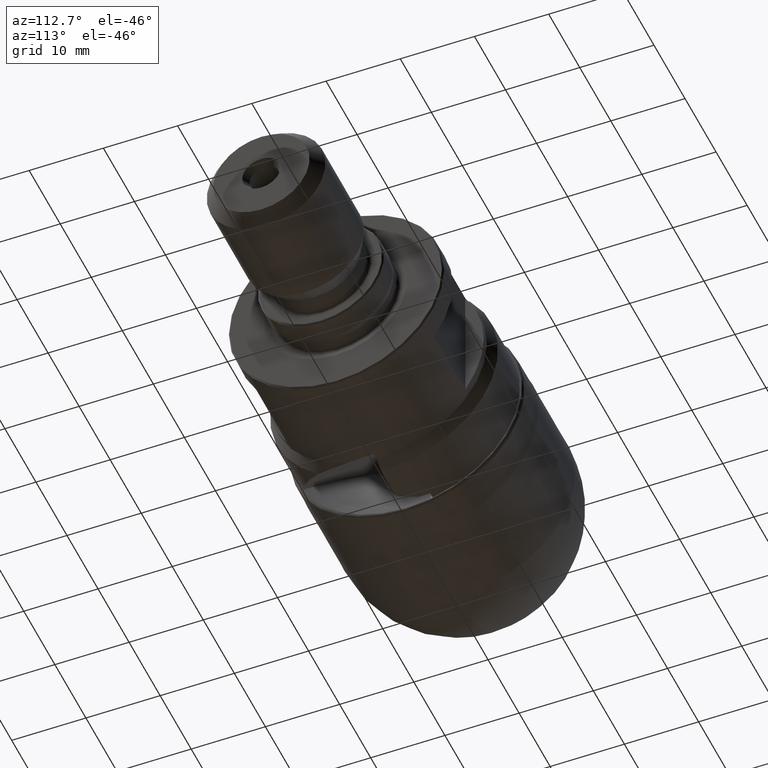
[diagram: clean part render]
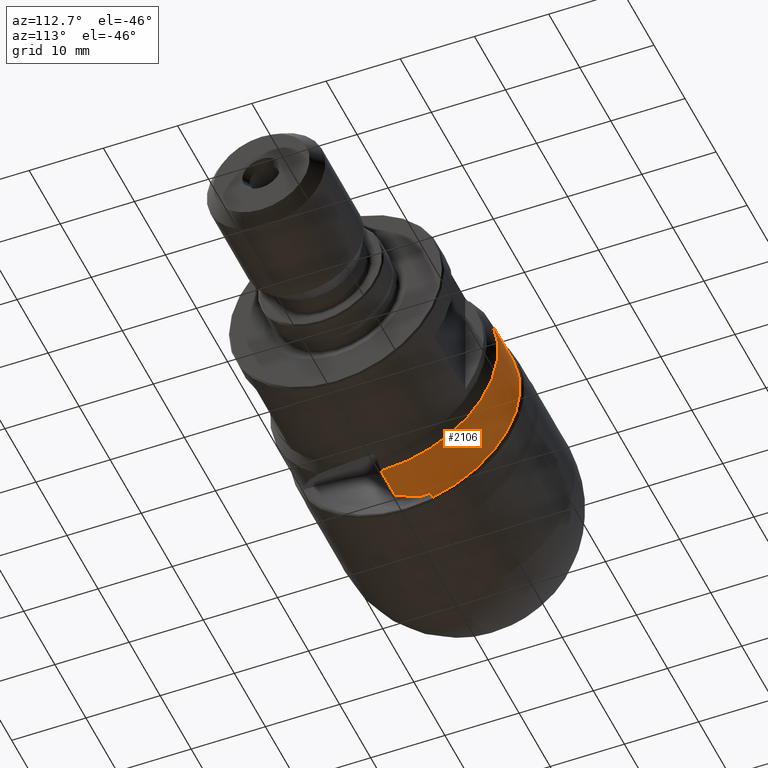
[diagram: same view with one face highlighted and labeled with its STEP entity id]
A machine part, auxiliary view. The second image highlights one B-rep face of the part: STEP entity #2106.
In plain terms, the highlighted cylindrical surface (partial cylindrical patch) has radius 15.362 mm, axis along (-1, 0, 0).
Its self-contained STEP definition (entity closure, byte-faithful):
#281 = CARTESIAN_POINT ( 'NONE',  ( 33.52251955386206816, 1.881305994767226599E-15, -15.36202924857244767 ) ) ;
#309 = DIRECTION ( 'NONE',  ( -1.000000000000000000, 0.0000000000000000000, 0.0000000000000000000 ) ) ;
#401 = CARTESIAN_POINT ( 'NONE',  ( 31.92414880946625644, 9.206737823980432722, 12.61522035699139188 ) ) ;
#452 = EDGE_CURVE ( 'NONE', #2732, #812, #1755, .T. ) ;
#516 = CARTESIAN_POINT ( 'NONE',  ( 28.98327717877516818, -0.4276279099999997224, -15.35607622423724017 ) ) ;
#521 = EDGE_CURVE ( 'NONE', #2577, #1482, #3431, .T. ) ;
#686 = CARTESIAN_POINT ( 'NONE',  ( 33.52251955386206816, 6.672479506331188581, 13.83726706657011007 ) ) ;
#714 = ORIENTED_EDGE ( 'NONE', *, *, #3782, .T. ) ;
#812 = VERTEX_POINT ( 'NONE', #1373 ) ;
#858 = CARTESIAN_POINT ( 'NONE',  ( 27.22390845468305898, 3.599414229999999826, -14.93439519481350786 ) ) ;
#989 = DIRECTION ( 'NONE',  ( -1.000000000000000000, 0.0000000000000000000, 0.0000000000000000000 ) ) ;
#990 = ORIENTED_EDGE ( 'NONE', *, *, #452, .F. ) ;
#1105 = CARTESIAN_POINT ( 'NONE',  ( 26.41533352457568284, 12.85980528125481648, 8.403413042461140847 ) ) ;
#1154 = AXIS2_PLACEMENT_3D ( 'NONE', #3698, #309, #4480 ) ;
#1373 = CARTESIAN_POINT ( 'NONE',  ( 26.41533352457566508, 3.599414229999999826, -14.93439519481350786 ) ) ;
#1377 = CIRCLE ( 'NONE', #4152, 15.36202924857244767 ) ;
#1482 = VERTEX_POINT ( 'NONE', #2316 ) ;
#1583 = CARTESIAN_POINT ( 'NONE',  ( 27.22390845468305898, 3.599414229999999826, -14.93439519481350786 ) ) ;
#1612 = DIRECTION ( 'NONE',  ( -1.000000000000000000, 0.0000000000000000000, 0.0000000000000000000 ) ) ;
#1635 = CARTESIAN_POINT ( 'NONE',  ( 27.37863530442848514, 2.603907443426974666, -15.14829911210628310 ) ) ;
#1640 = CIRCLE ( 'NONE', #1154, 15.36202924857244767 ) ;
#1643 = ORIENTED_EDGE ( 'NONE', *, *, #4138, .T. ) ;
#1658 = CARTESIAN_POINT ( 'NONE',  ( -4.762142644779060241, 0.0000000000000000000, 0.0000000000000000000 ) ) ;
#1755 = CIRCLE ( 'NONE', #4296, 15.36202924857244589 ) ;
#1837 = EDGE_CURVE ( 'NONE', #4325, #3408, #1640, .T. ) ;
#1882 = CARTESIAN_POINT ( 'NONE',  ( 29.49585801636035498, 11.32074274115613832, 10.75865185808717328 ) ) ;
#2073 = VERTEX_POINT ( 'NONE', #1583 ) ;
#2106 = ADVANCED_FACE ( 'NONE', ( #2825 ), #2766, .T. ) ;
#2271 = ORIENTED_EDGE ( 'NONE', *, *, #521, .F. ) ;
#2316 = CARTESIAN_POINT ( 'NONE',  ( 28.98327717877516818, -0.4276279099999997224, -15.35607622423724017 ) ) ;
#2404 = CARTESIAN_POINT ( 'NONE',  ( 27.42897907706220550, 2.099414229999999826, -15.21789744100245123 ) ) ;
#2405 = ORIENTED_EDGE ( 'NONE', *, *, #4265, .T. ) ;
#2408 = CARTESIAN_POINT ( 'NONE',  ( 33.52251955386206816, 0.0000000000000000000, 0.0000000000000000000 ) ) ;
#2411 = CARTESIAN_POINT ( 'NONE',  ( 27.42897907706220550, 2.099414229999999826, -15.21789744100245123 ) ) ;
#2453 = DIRECTION ( 'NONE',  ( 0.0000000000000000000, 0.0000000000000000000, 1.000000000000000000 ) ) ;
#2462 = CARTESIAN_POINT ( 'NONE',  ( 26.41533352457568284, 12.85980528125481648, 8.403413042461140847 ) ) ;
#2573 = ORIENTED_EDGE ( 'NONE', *, *, #4320, .T. ) ;
#2577 = VERTEX_POINT ( 'NONE', #2411 ) ;
#2670 = VERTEX_POINT ( 'NONE', #4739 ) ;
#2724 =( BOUNDED_CURVE ( )  B_SPLINE_CURVE ( 3, ( #858, #3525, #1635, #2404 ),
 .UNSPECIFIED., .F., .F. ) 
 B_SPLINE_CURVE_WITH_KNOTS ( ( 4, 4 ),
 ( 2.905088112527216548, 3.004501079052246837 ),
 .UNSPECIFIED. ) 
 CURVE ( )  GEOMETRIC_REPRESENTATION_ITEM ( )  RATIONAL_B_SPLINE_CURVE ( ( 1.000000000000000000, 0.9991765913968390089, 0.9991765913968390089, 1.000000000000000000 ) ) 
 REPRESENTATION_ITEM ( '' )  );
#2732 = VERTEX_POINT ( 'NONE', #2462 ) ;
#2766 = CYLINDRICAL_SURFACE ( 'NONE', #2832, 15.36202924857244589 ) ;
#2825 = FACE_OUTER_BOUND ( 'NONE', #3439, .T. ) ;
#2832 = AXIS2_PLACEMENT_3D ( 'NONE', #1658, #989, #2453 ) ;
#2873 = ORIENTED_EDGE ( 'NONE', *, *, #4862, .F. ) ;
#2967 = CARTESIAN_POINT ( 'NONE',  ( 33.52251955386206816, 6.672479506331188581, 13.83726706657011007 ) ) ;
#3097 = DIRECTION ( 'NONE',  ( 0.0000000000000000000, 0.0000000000000000000, 1.000000000000000000 ) ) ;
#3288 = VECTOR ( 'NONE', #4428, 1000.000000000000000 ) ;
#3296 = CARTESIAN_POINT ( 'NONE',  ( -4.762142644779060241, 3.599414229999999826, -14.93439519481350786 ) ) ;
#3331 = CARTESIAN_POINT ( 'NONE',  ( 26.41533352457567929, 0.0000000000000000000, 0.0000000000000000000 ) ) ;
#3408 = VERTEX_POINT ( 'NONE', #281 ) ;
#3431 =( BOUNDED_CURVE ( )  B_SPLINE_CURVE ( 3, ( #3538, #4221, #4246, #516 ),
 .UNSPECIFIED., .F., .F. ) 
 B_SPLINE_CURVE_WITH_KNOTS ( ( 4, 4 ),
 ( 2.332433362608903771, 2.497365214568354475 ),
 .UNSPECIFIED. ) 
 CURVE ( )  GEOMETRIC_REPRESENTATION_ITEM ( )  RATIONAL_B_SPLINE_CURVE ( ( 1.000000000000000000, 0.9977344080749738220, 0.9977344080749738220, 1.000000000000000000 ) ) 
 REPRESENTATION_ITEM ( '' )  );
#3439 = EDGE_LOOP ( 'NONE', ( #990, #2573, #3750, #1643, #714, #2271, #2873, #2405 ) ) ;
#3525 = CARTESIAN_POINT ( 'NONE',  ( 27.31022209827959202, 3.104319487008784684, -15.05372048652265704 ) ) ;
#3538 = CARTESIAN_POINT ( 'NONE',  ( 27.42897907706220550, 2.099414229999999826, -15.21789744100245123 ) ) ;
#3688 = DIRECTION ( 'NONE',  ( -1.000000000000000000, 0.0000000000000000000, 0.0000000000000000000 ) ) ;
#3698 = CARTESIAN_POINT ( 'NONE',  ( 33.52251955386206816, 0.0000000000000000000, 0.0000000000000000000 ) ) ;
#3750 = ORIENTED_EDGE ( 'NONE', *, *, #1837, .T. ) ;
#3782 = EDGE_CURVE ( 'NONE', #2670, #1482, #4494, .T. ) ;
#3797 = DIRECTION ( 'NONE',  ( -1.000000000000000000, -0.0000000000000000000, -0.0000000000000000000 ) ) ;
#3821 = VECTOR ( 'NONE', #3688, 1000.000000000000000 ) ;
#4090 = LINE ( 'NONE', #3296, #3288 ) ;
#4138 = EDGE_CURVE ( 'NONE', #3408, #2670, #1377, .T. ) ;
#4152 = AXIS2_PLACEMENT_3D ( 'NONE', #2408, #1612, #3097 ) ;
#4221 = CARTESIAN_POINT ( 'NONE',  ( 27.99460606383388495, 1.261825883113604663, -15.33344854792458811 ) ) ;
#4246 = CARTESIAN_POINT ( 'NONE',  ( 28.51388189820876562, 0.4175657541828790564, -15.37961273153780617 ) ) ;
#4256 =( BOUNDED_CURVE ( )  B_SPLINE_CURVE ( 3, ( #1105, #1882, #401, #2967 ),
 .UNSPECIFIED., .F., .T. ) 
 B_SPLINE_CURVE_WITH_KNOTS ( ( 4, 4 ),
 ( 2.149602475459168271, 2.692277421462497600 ),
 .UNSPECIFIED. ) 
 CURVE ( )  GEOMETRIC_REPRESENTATION_ITEM ( )  RATIONAL_B_SPLINE_CURVE ( ( 1.000000000000000000, 0.9756088589093493413, 0.9756088589093493413, 1.000000000000000000 ) ) 
 REPRESENTATION_ITEM ( '' )  );
#4265 = EDGE_CURVE ( 'NONE', #2073, #812, #4090, .T. ) ;
#4296 = AXIS2_PLACEMENT_3D ( 'NONE', #3331, #3797, #4564 ) ;
#4320 = EDGE_CURVE ( 'NONE', #2732, #4325, #4256, .T. ) ;
#4325 = VERTEX_POINT ( 'NONE', #686 ) ;
#4428 = DIRECTION ( 'NONE',  ( -1.000000000000000000, 0.0000000000000000000, 0.0000000000000000000 ) ) ;
#4480 = DIRECTION ( 'NONE',  ( 0.0000000000000000000, 0.0000000000000000000, 1.000000000000000000 ) ) ;
#4494 = LINE ( 'NONE', #4898, #3821 ) ;
#4564 = DIRECTION ( 'NONE',  ( 0.0000000000000000000, 0.0000000000000000000, 1.000000000000000000 ) ) ;
#4739 = CARTESIAN_POINT ( 'NONE',  ( 33.52251955386206816, -0.4276279100000000000, -15.35607622423724372 ) ) ;
#4862 = EDGE_CURVE ( 'NONE', #2073, #2577, #2724, .T. ) ;
#4898 = CARTESIAN_POINT ( 'NONE',  ( -4.762142644779063794, -0.4276279100000000000, -15.35607622423724372 ) ) ;